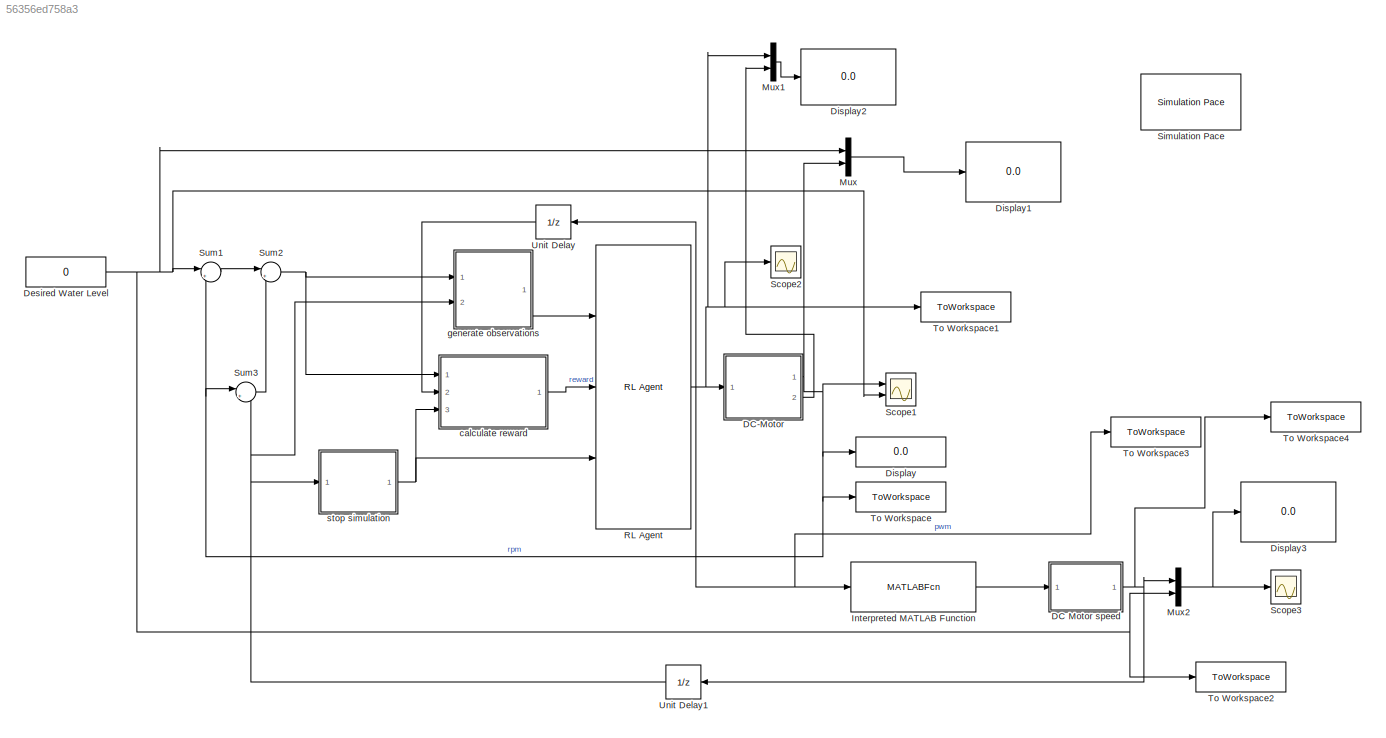
MODEL slx_56356ed758a3
KIND model
CONFIG AbsTol = auto
CONFIG EnableMultiTasking = off
CONFIG FixedStep = auto
CONFIG MaxStep = auto
CONFIG MinStep = auto
CONFIG RelTol = 1e-3
CONFIG SampleTimeConstraint = Unconstrained
CONFIG SolverName = VariableStepAuto
CONFIG StartTime = 0.0
CONFIG StopTime = 10.0
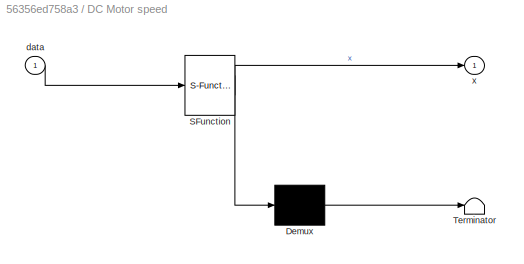
BLOCK [SubSystem] DC Motor speed 
  ErrorFcn = Stateflow.Translate.translate
  PermitHierarchicalResolution = ExplicitOnly
  Ports = [1, 1]
  RequestExecContextInheritance = off
  SFBlockType = MATLAB Function
  TreatAsAtomicUnit = on
BLOCK [Demux] DC Motor speed / Demux 
  Outputs = 1
  Ports = [1, 1]
BLOCK [S-Function] DC Motor speed / SFunction 
  EnableBusSupport = on
  FunctionName = sf_sfun
  PortCounts = [1 2]
  Ports = [1, 2]
  SFcnIsStateOwnerBlock = off
  SFunctionDeploymentMode = off
  Tag = Stateflow S-Function 3
BLOCK [Terminator] DC Motor speed / Terminator 
BLOCK [Inport] DC Motor speed /data
BLOCK [Outport] DC Motor speed /x
  VectorParamsAs1DForOutWhenUnconnected = off
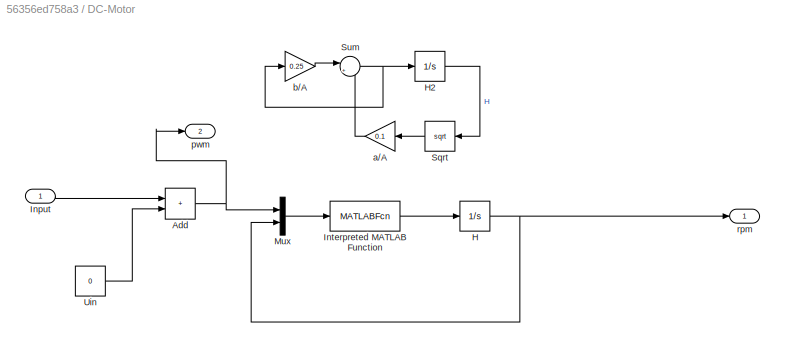
BLOCK [SubSystem] DC-Motor
  Ports = [1, 2]
  RequestExecContextInheritance = off
BLOCK [Sum] DC-Motor/Add
  IconShape = rectangular
  Ports = [2, 1]
BLOCK [Integrator] DC-Motor/H
  InitialCondition = 3
  LimitOutput = on
  LowerSaturationLimit = 0
  Ports = [1, 1]
BLOCK [Integrator] DC-Motor/H2
  Commented = on
  InitialCondition = 3
  LimitOutput = on
  LowerSaturationLimit = 0
  Ports = [1, 1]
BLOCK [Inport] DC-Motor/Input
BLOCK [MATLABFcn] DC-Motor/Interpreted MATLAB Function
  MATLABFcn = first_order
  OutputDimensions = 1
  Ports = [1, 1]
BLOCK [Mux] DC-Motor/Mux
  DisplayOption = bar
  Inputs = 2
  Ports = [2, 1]
BLOCK [Sqrt] DC-Motor/Sqrt
  Commented = on
  NameLocation = top
  OutputSignalType = real
BLOCK [Sum] DC-Motor/Sum
  Commented = on
  Inputs = |+-
  Ports = [2, 1]
  SaturateOnIntegerOverflow = on
BLOCK [Constant] DC-Motor/Uin
  Value = 0
BLOCK [Gain] DC-Motor/a//A
  Commented = on
  Gain = 0.1
  OutDataTypeStr = Inherit: Same as input
  ParamDataTypeStr = Inherit: Same as input
  SaturateOnIntegerOverflow = on
BLOCK [Gain] DC-Motor/b//A
  Commented = on
  Gain = 0.25
  OutDataTypeStr = Inherit: Same as input
  ParamDataTypeStr = Inherit: Same as input
  SaturateOnIntegerOverflow = on
BLOCK [Outport] DC-Motor/pwm
  Port = 2
  VectorParamsAs1DForOutWhenUnconnected = off
BLOCK [Outport] DC-Motor/rpm
  VectorParamsAs1DForOutWhenUnconnected = off
BLOCK [Constant] Desired Water Level
  Value = 0
BLOCK [Display] Display
  Decimation = 1
  Ports = [1]
BLOCK [Display] Display1
  Decimation = 1
  Ports = [1]
BLOCK [Display] Display2
  Decimation = 1
  Ports = [1]
BLOCK [Display] Display3
  Decimation = 1
  Ports = [1]
BLOCK [MATLABFcn] Interpreted MATLAB Function
  MATLABFcn = dc_motor_trial
  Output1D = off
  OutputDimensions = [1,2]
  Ports = [1, 1]
BLOCK [Mux] Mux
  DisplayOption = bar
  Inputs = 2
  Ports = [2, 1]
BLOCK [Mux] Mux1
  DisplayOption = bar
  Inputs = 2
  Ports = [2, 1]
BLOCK [Mux] Mux2
  DisplayOption = bar
  Inputs = 2
  Ports = [2, 1]
BLOCK [Reference] RL Agent  REF=rllib/RL Agent
  Ports = [3, 1]
  SourceBlock = rllib/RL Agent
  SourceProductBaseCode = RL
  SourceType = RL Agent
BLOCK [Scope] Scope1
  Floating = off
  NumInputPorts = 2
  Ports = [2]
  ScopeSpecificationString = Simulink.scopes.TimeScopeBlockCfg('CurrentConfiguration', extmgr.ConfigurationSet(extmgr.Configuration('Core','General UI',true),extmgr.Configuration('Core','Source UI',true),extmgr.Configuration('Sources','WiredSimulink',true,'DataLoggingVariableName','ScopeData1'),extmgr.Configuration('Visuals','Time Domain',true,'SerializedDisplays',{struct('MinYLimReal','-317.50151','MaxYLimReal','2887.51357',...<+1455ch>
BLOCK [Scope] Scope2
  Floating = off
  NumInputPorts = 1
  Ports = [1]
  ScopeSpecificationString = Simulink.scopes.TimeScopeBlockCfg('CurrentConfiguration', extmgr.ConfigurationSet(extmgr.Configuration('Core','General UI',true),extmgr.Configuration('Core','Source UI',true),extmgr.Configuration('Sources','WiredSimulink',true,'DataLoggingVariableName','ScopeData2'),extmgr.Configuration('Visuals','Time Domain',true,'SerializedDisplays',{struct('MinYLimReal','-0.03374','MaxYLimReal','0.30367','YLab...<+1420ch>
BLOCK [Scope] Scope3
  Floating = off
  NumInputPorts = 1
  Ports = [1]
  ScopeSpecificationString = Simulink.scopes.TimeScopeBlockCfg('CurrentConfiguration', extmgr.ConfigurationSet(extmgr.Configuration('Core','General UI',true),extmgr.Configuration('Core','Source UI',true),extmgr.Configuration('Sources','WiredSimulink',true),extmgr.Configuration('Visuals','Time Domain',true,'SerializedDisplays',{struct('MinYLimReal','-394.08635','MaxYLimReal','3546.77712','YLabelReal','','MinYLimMag',' 0.00000'...<+1428ch>
BLOCK [Reference] Simulation Pace  REF=aerolibanimutils/Simulation Pace
  AttributesFormatString = %<SleepMode>\n%<SimulationPace> sec/sec
  Ports = []
  SourceBlock = aerolibanimutils/Simulation Pace
  SourceProductBaseCode = AE
  SourceType = Simulation Pace
BLOCK [Sum] Sum1
  Inputs = |+-
  Ports = [2, 1]
  SaturateOnIntegerOverflow = on
BLOCK [Sum] Sum2
  Inputs = |++
  Ports = [2, 1]
  SaturateOnIntegerOverflow = on
BLOCK [Sum] Sum3
  Inputs = |+-
  Ports = [2, 1]
  SaturateOnIntegerOverflow = on
BLOCK [ToWorkspace] To Workspace
  FixptAsFi = on
  MaxDataPoints = inf
  Ports = [1]
  SampleTime = -1
  VariableName = RPM
BLOCK [ToWorkspace] To Workspace1
  MaxDataPoints = inf
  Ports = [1]
  SampleTime = -1
  SaveFormat = Timeseries
  VariableName = PWM
BLOCK [ToWorkspace] To Workspace2
  MaxDataPoints = inf
  Ports = [1]
  SampleTime = -1
  SaveFormat = Timeseries
  VariableName = setpoint_real
BLOCK [ToWorkspace] To Workspace3
  MaxDataPoints = inf
  Ports = [1]
  SampleTime = -1
  SaveFormat = Timeseries
  VariableName = pwm_real
BLOCK [ToWorkspace] To Workspace4
  MaxDataPoints = inf
  Ports = [1]
  SampleTime = -1
  SaveFormat = Timeseries
  VariableName = rpm_real
BLOCK [UnitDelay] Unit Delay
  HasFrameUpgradeWarning = on
  SampleTime = -1
BLOCK [UnitDelay] Unit Delay1
  HasFrameUpgradeWarning = on
  SampleTime = -1
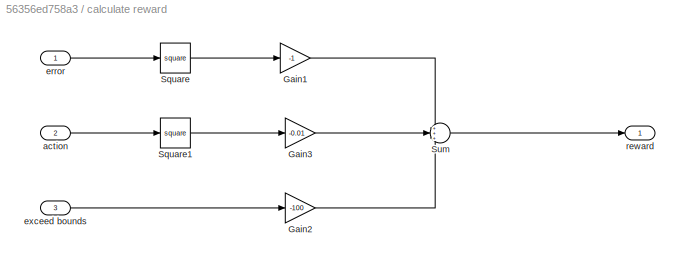
BLOCK [SubSystem] calculate reward
  Ports = [3, 1]
  RequestExecContextInheritance = off
BLOCK [Gain] calculate reward/Gain1
  Gain = -1
BLOCK [Gain] calculate reward/Gain2
  Gain = -100
BLOCK [Gain] calculate reward/Gain3
  Gain = -0.01
BLOCK [Math] calculate reward/Square
  Operator = square
  Ports = [1, 1]
BLOCK [Math] calculate reward/Square1
  Operator = square
  Ports = [1, 1]
BLOCK [Sum] calculate reward/Sum
  Inputs = +++
  OutDataTypeStr = double
  Ports = [3, 1]
BLOCK [Inport] calculate reward/action
  Port = 2
BLOCK [Inport] calculate reward/error
BLOCK [Inport] calculate reward/exceed bounds
  Port = 3
BLOCK [Outport] calculate reward/reward
  VectorParamsAs1DForOutWhenUnconnected = off
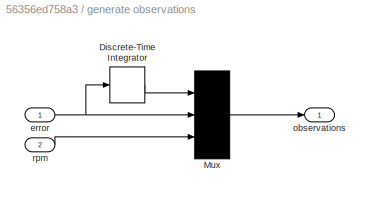
BLOCK [SubSystem] generate observations
  Ports = [2, 1]
  RequestExecContextInheritance = off
BLOCK [DiscreteIntegrator] generate observations/Discrete-Time Integrator
  ICPrevOutput = DiscIntNeverNeededParam
  ICPrevScaledInput = DiscIntNeverNeededParam
  InitialConditionSetting = Auto
  Ports = [1, 1]
  SampleTime = Ts
BLOCK [Mux] generate observations/Mux
  DisplayOption = bar
  Inputs = 3
  Ports = [3, 1]
BLOCK [Inport] generate observations/error
BLOCK [Outport] generate observations/observations
  VectorParamsAs1DForOutWhenUnconnected = off
BLOCK [Inport] generate observations/rpm
  Port = 2
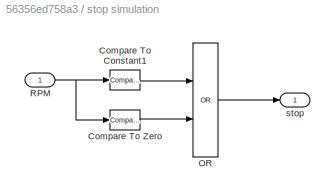
BLOCK [SubSystem] stop simulation
  Ports = [1, 1]
  RequestExecContextInheritance = off
BLOCK [Reference] stop simulation/Compare To Constant1  REF=simulink/Logic and Bit
Operations/Compare
To Constant
  Ports = [1, 1]
  SourceBlock = simulink/Logic and Bit\nOperations/Compare\nTo Constant
  SourceProductBaseCode = SL
  SourceType = Compare To Constant
BLOCK [Reference] stop simulation/Compare To Zero  REF=simulink/Logic and Bit
Operations/Compare
To Zero
  Ports = [1, 1]
  SourceBlock = simulink/Logic and Bit\nOperations/Compare\nTo Zero
  SourceProductBaseCode = SL
  SourceType = Compare To Zero
BLOCK [Logic] stop simulation/OR
  AllPortsSameDT = off
  IconShape = distinctive
  Operator = OR
  OutDataTypeStr = boolean
  Ports = [2, 1]
BLOCK [Inport] stop simulation/RPM
BLOCK [Outport] stop simulation/stop
  VectorParamsAs1DForOutWhenUnconnected = off
NET DC Motor speed :1 -> Mux2:1, To Workspace4:1, Unit Delay1:1
NET DC-Motor/Add:1 -> DC-Motor/Mux:1, DC-Motor/pwm:1
LINE DC-Motor/H2:1 -> DC-Motor/Sqrt:1
NET DC-Motor/H:1 -> DC-Motor/Mux:2, DC-Motor/rpm:1
LINE DC-Motor/Input:1 -> DC-Motor/Add:1
LINE DC-Motor/Interpreted MATLAB Function:1 -> DC-Motor/H:1
LINE DC-Motor/Mux:1 -> DC-Motor/Interpreted MATLAB Function:1
LINE DC-Motor/Sqrt:1 -> DC-Motor/a//A:1
NET DC-Motor/Sum:1 -> DC-Motor/H2:1, DC-Motor/b//A:1
LINE DC-Motor/Uin:1 -> DC-Motor/Add:2
LINE DC-Motor/a//A:1 -> DC-Motor/Sum:2
LINE DC-Motor/b//A:1 -> DC-Motor/Sum:1
NET DC-Motor:1 -> Display:1, Mux:2, Scope1:1, Sum1:2, Sum3:1, To Workspace:1
LINE DC-Motor:2 -> Mux1:2
NET Desired Water Level:1 -> Mux2:2, Mux:1, Scope1:2, Sum1:1, To Workspace2:1
LINE Interpreted MATLAB Function:1 -> DC Motor speed :1
LINE Mux1:1 -> Display2:1
NET Mux2:1 -> Display3:1, Scope3:1
LINE Mux:1 -> Display1:1
NET RL Agent:1 -> DC-Motor:1, Interpreted MATLAB Function:1, Mux1:1, Scope2:1, To Workspace1:1, To Workspace3:1, Unit Delay:1
LINE Sum1:1 -> Sum2:1
NET Sum2:1 -> calculate reward:1, generate observations:1
LINE Sum3:1 -> Sum2:2
NET Unit Delay1:1 -> Sum3:2, generate observations:2, stop simulation:1
LINE Unit Delay:1 -> calculate reward:2
LINE calculate reward/Gain1:1 -> calculate reward/Sum:1
LINE calculate reward/Gain2:1 -> calculate reward/Sum:3
LINE calculate reward/Gain3:1 -> calculate reward/Sum:2
LINE calculate reward/Square1:1 -> calculate reward/Gain3:1
LINE calculate reward/Square:1 -> calculate reward/Gain1:1
LINE calculate reward/Sum:1 -> calculate reward/reward:1
LINE calculate reward/action:1 -> calculate reward/Square1:1
LINE calculate reward/error:1 -> calculate reward/Square:1
LINE calculate reward/exceed bounds:1 -> calculate reward/Gain2:1
LINE calculate reward:1 -> RL Agent:2
LINE generate observations/Discrete-Time Integrator:1 -> generate observations/Mux:1
LINE generate observations/Mux:1 -> generate observations/observations:1
NET generate observations/error:1 -> generate observations/Discrete-Time Integrator:1, generate observations/Mux:2
LINE generate observations/rpm:1 -> generate observations/Mux:3
LINE generate observations:1 -> RL Agent:1
LINE stop simulation/Compare To Constant1:1 -> stop simulation/OR:1
LINE stop simulation/Compare To Zero:1 -> stop simulation/OR:2
LINE stop simulation/OR:1 -> stop simulation/stop:1
NET stop simulation/RPM:1 -> stop simulation/Compare To Constant1:1, stop simulation/Compare To Zero:1
NET stop simulation:1 -> RL Agent:3, calculate reward:3
note: NET lines group one-source signal fan-out (src -> all destinations, sorted); 1:1 wires keep LINE
CHART DC Motor speed
 states=1 transitions=1
  STATE_LABEL 'eML_blk_kernel()'
  STATE_LABEL 'SCRIPT:\nfunction x  = PWM(data)\n\nF = data(:,1)*256;\nr = data(:,2);\nx = (F+r)*8.982025;\n\nend'
CHART  states=0 transitions=0
